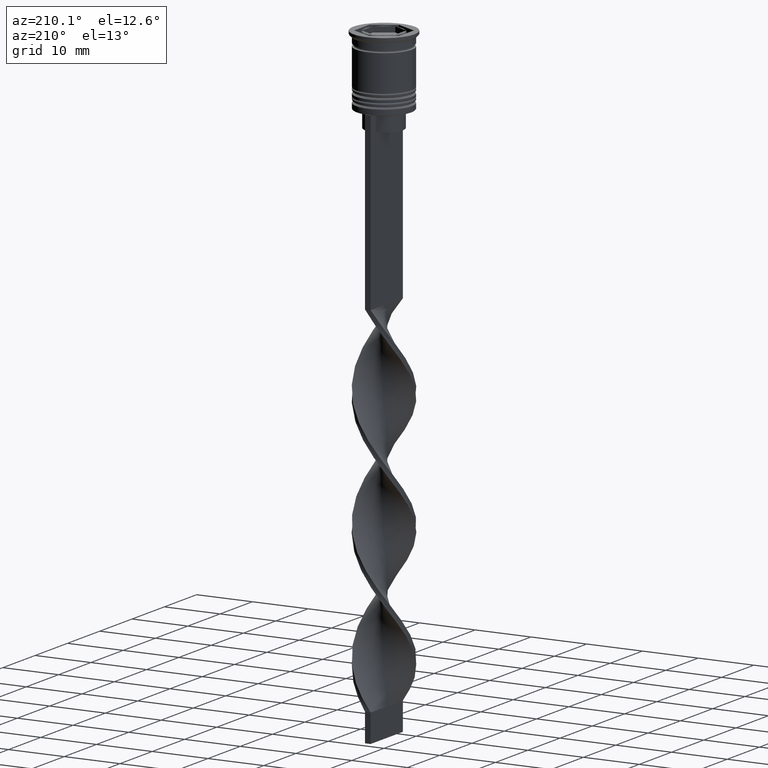
[diagram: clean part render]
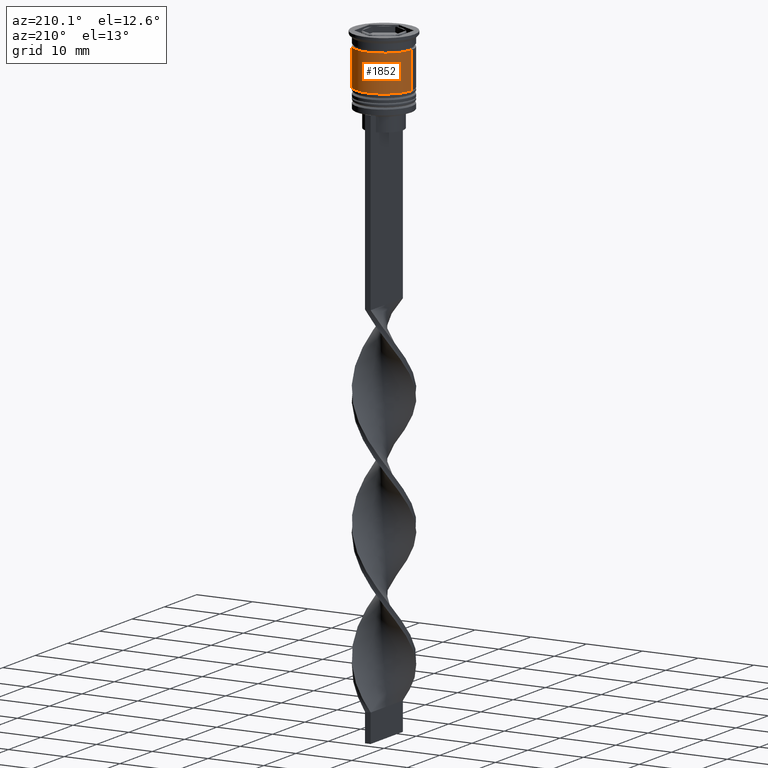
[diagram: same view with one face highlighted and labeled with its STEP entity id]
A machine part, auxiliary view. The second image highlights one B-rep face of the part: STEP entity #1852.
In plain terms, the highlighted cylindrical surface (edge-blend (fillet) strip) has radius 5 mm, axis along (-0, -0, 1).
Its self-contained STEP definition (entity closure, byte-faithful):
#24 = CARTESIAN_POINT ( 'NONE',  ( 0.000000000000000000, 0.000000000000000000, -9.000000000000001776 ) ) ;
#344 = VERTEX_POINT ( 'NONE', #1213 ) ;
#384 = ORIENTED_EDGE ( 'NONE', *, *, #2901, .T. ) ;
#543 = LINE ( 'NONE', #1095, #3141 ) ;
#556 = CYLINDRICAL_SURFACE ( 'NONE', #3077, 5.000000000000000000 ) ;
#795 = DIRECTION ( 'NONE',  ( -0.000000000000000000, -0.000000000000000000, 1.000000000000000000 ) ) ;
#904 = VERTEX_POINT ( 'NONE', #3399 ) ;
#1095 = CARTESIAN_POINT ( 'NONE',  ( 5.000000000000000000, 0.000000000000000000, 0.000000000000000000 ) ) ;
#1101 = CARTESIAN_POINT ( 'NONE',  ( 5.000000000000000888, 0.000000000000000000, -9.000000000000001776 ) ) ;
#1213 = CARTESIAN_POINT ( 'NONE',  ( -4.999999999999999112, 6.123233995736766282E-16, -2.500000000000000000 ) ) ;
#1235 = VERTEX_POINT ( 'NONE', #1101 ) ;
#1237 = DIRECTION ( 'NONE',  ( 1.000000000000000000, 0.000000000000000000, 0.000000000000000000 ) ) ;
#1436 = EDGE_LOOP ( 'NONE', ( #384, #2128, #1730, #2908 ) ) ;
#1515 = DIRECTION ( 'NONE',  ( -0.000000000000000000, -0.000000000000000000, 1.000000000000000000 ) ) ;
#1656 = CIRCLE ( 'NONE', #1782, 5.000000000000000888 ) ;
#1672 = EDGE_CURVE ( 'NONE', #904, #344, #3549, .T. ) ;
#1677 = CARTESIAN_POINT ( 'NONE',  ( 0.000000000000000000, 0.000000000000000000, 0.000000000000000000 ) ) ;
#1730 = ORIENTED_EDGE ( 'NONE', *, *, #1672, .F. ) ;
#1782 = AXIS2_PLACEMENT_3D ( 'NONE', #24, #1515, #1237 ) ;
#1852 = ADVANCED_FACE ( 'NONE', ( #2223 ), #556, .T. ) ;
#1898 = VERTEX_POINT ( 'NONE', #2103 ) ;
#2052 = EDGE_CURVE ( 'NONE', #1898, #344, #3414, .T. ) ;
#2103 = CARTESIAN_POINT ( 'NONE',  ( -5.000000000000000888, 6.123233995736767268E-16, -9.000000000000001776 ) ) ;
#2128 = ORIENTED_EDGE ( 'NONE', *, *, #2052, .T. ) ;
#2132 = DIRECTION ( 'NONE',  ( -0.000000000000000000, -0.000000000000000000, 1.000000000000000000 ) ) ;
#2190 = DIRECTION ( 'NONE',  ( 1.000000000000000000, 0.000000000000000000, 0.000000000000000000 ) ) ;
#2223 = FACE_OUTER_BOUND ( 'NONE', #1436, .T. ) ;
#2383 = EDGE_CURVE ( 'NONE', #1235, #904, #543, .T. ) ;
#2462 = DIRECTION ( 'NONE',  ( 1.000000000000000000, 0.000000000000000000, 0.000000000000000000 ) ) ;
#2547 = DIRECTION ( 'NONE',  ( -0.000000000000000000, -0.000000000000000000, 1.000000000000000000 ) ) ;
#2694 = CARTESIAN_POINT ( 'NONE',  ( 0.000000000000000000, 0.000000000000000000, -2.500000000000000000 ) ) ;
#2901 = EDGE_CURVE ( 'NONE', #1235, #1898, #1656, .T. ) ;
#2908 = ORIENTED_EDGE ( 'NONE', *, *, #2383, .F. ) ;
#3077 = AXIS2_PLACEMENT_3D ( 'NONE', #1677, #795, #2190 ) ;
#3125 = CARTESIAN_POINT ( 'NONE',  ( -5.000000000000000000, 6.123233995736766282E-16, 0.000000000000000000 ) ) ;
#3141 = VECTOR ( 'NONE', #2547, 1000.000000000000000 ) ;
#3256 = AXIS2_PLACEMENT_3D ( 'NONE', #2694, #2132, #2462 ) ;
#3315 = VECTOR ( 'NONE', #3431, 1000.000000000000000 ) ;
#3399 = CARTESIAN_POINT ( 'NONE',  ( 4.999999999999999112, 0.000000000000000000, -2.500000000000000000 ) ) ;
#3414 = LINE ( 'NONE', #3125, #3315 ) ;
#3431 = DIRECTION ( 'NONE',  ( -0.000000000000000000, -0.000000000000000000, 1.000000000000000000 ) ) ;
#3549 = CIRCLE ( 'NONE', #3256, 4.999999999999999112 ) ;